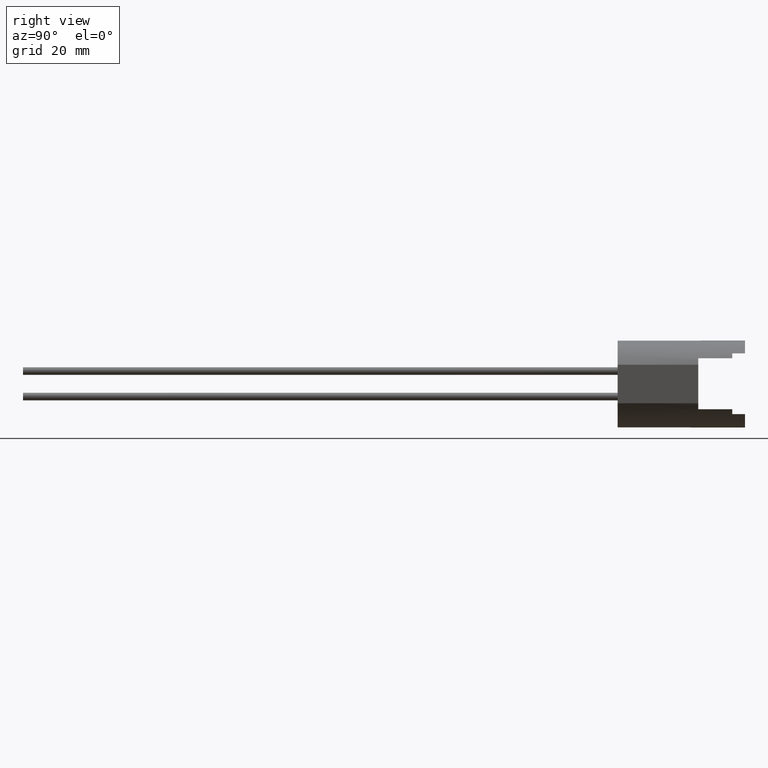
[diagram: clean part render]
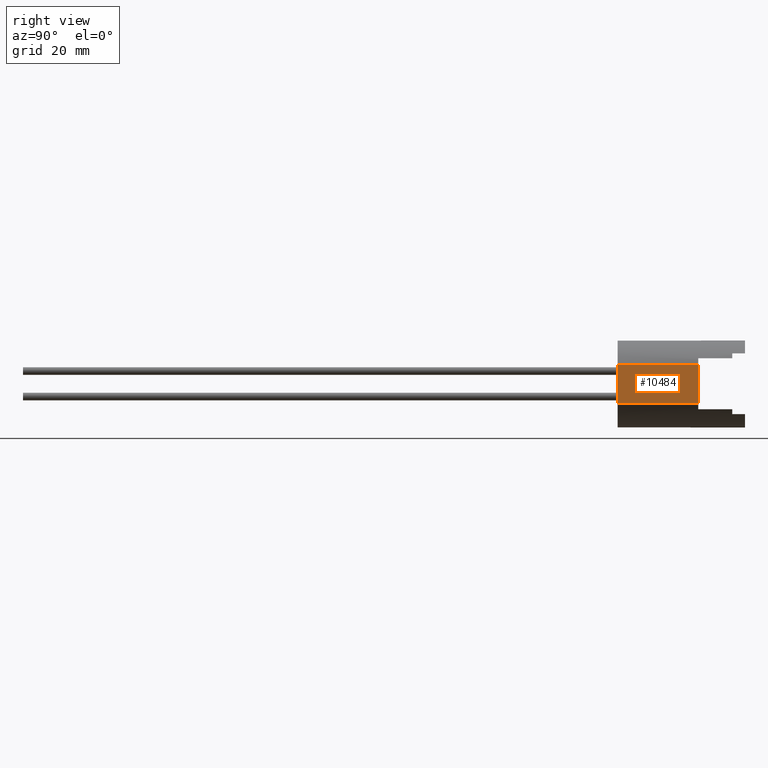
[diagram: same view with one face highlighted and labeled with its STEP entity id]
A machine part, right view. The second image highlights one B-rep face of the part: STEP entity #10484.
In plain terms, the highlighted planar face has unit normal (1, 0, 0).
Its self-contained STEP definition (entity closure, byte-faithful):
#696=FACE_OUTER_BOUND('',#1246,.T.);
#1246=EDGE_LOOP('',(#7957,#7958,#7959,#7960));
#2469=LINE('',#16623,#3661);
#2473=LINE('',#16644,#3665);
#2474=LINE('',#16646,#3666);
#2475=LINE('',#16647,#3667);
#3661=VECTOR('',#12802,10.);
#3665=VECTOR('',#12826,10.);
#3666=VECTOR('',#12827,10.);
#3667=VECTOR('',#12828,10.);
#4725=VERTEX_POINT('',#16620);
#4726=VERTEX_POINT('',#16622);
#4733=VERTEX_POINT('',#16643);
#4734=VERTEX_POINT('',#16645);
#5978=EDGE_CURVE('',#4725,#4726,#2469,.T.);
#5989=EDGE_CURVE('',#4725,#4733,#2473,.T.);
#5990=EDGE_CURVE('',#4733,#4734,#2474,.T.);
#5991=EDGE_CURVE('',#4734,#4726,#2475,.T.);
#7957=ORIENTED_EDGE('',*,*,#5989,.T.);
#7958=ORIENTED_EDGE('',*,*,#5990,.T.);
#7959=ORIENTED_EDGE('',*,*,#5991,.T.);
#7960=ORIENTED_EDGE('',*,*,#5978,.F.);
#10075=PLANE('',#11060);
#10484=ADVANCED_FACE('',(#696),#10075,.T.);
#11060=AXIS2_PLACEMENT_3D('',#16642,#12824,#12825);
#12802=DIRECTION('',(0.,-1.,0.));
#12824=DIRECTION('center_axis',(1.,0.,2.45042942797332E-16));
#12825=DIRECTION('ref_axis',(-2.45042942797332E-16,0.,1.));
#12826=DIRECTION('',(-2.45042942797332E-16,0.,1.));
#12827=DIRECTION('',(0.,-1.,0.));
#12828=DIRECTION('',(2.45042942797332E-16,0.,-1.));
#16620=CARTESIAN_POINT('',(9.25,0.999999999999999,-4.58141626574141));
#16622=CARTESIAN_POINT('',(9.25,-18.,-4.58141626574141));
#16623=CARTESIAN_POINT('',(9.25,12.,-4.58141626574141));
#16642=CARTESIAN_POINT('Origin',(9.25,12.,-4.58141626574141));
#16643=CARTESIAN_POINT('',(9.25,0.999999999999999,4.48004057077225));
#16644=CARTESIAN_POINT('',(9.25,1.,0.709291867129295));
#16645=CARTESIAN_POINT('',(9.25,-18.,4.48004057077225));
#16646=CARTESIAN_POINT('',(9.25,12.,4.48004057077225));
#16647=CARTESIAN_POINT('',(9.25,-18.,-2.316052056613));